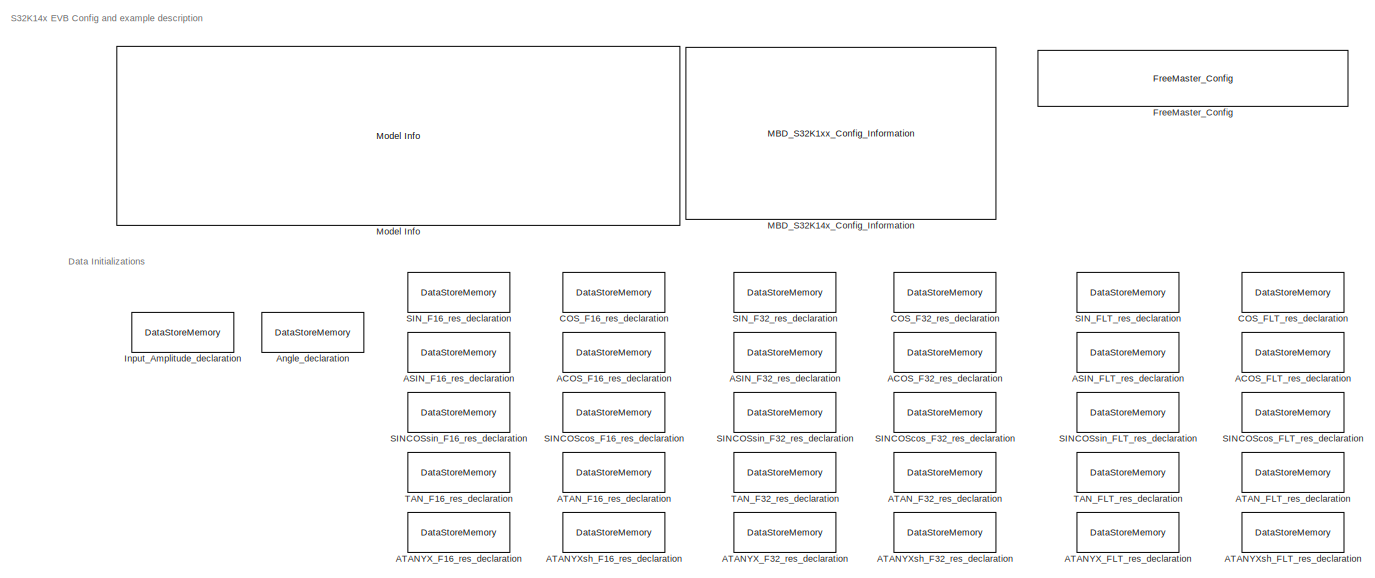
[diagram: root canvas - part 1/16, top center region]
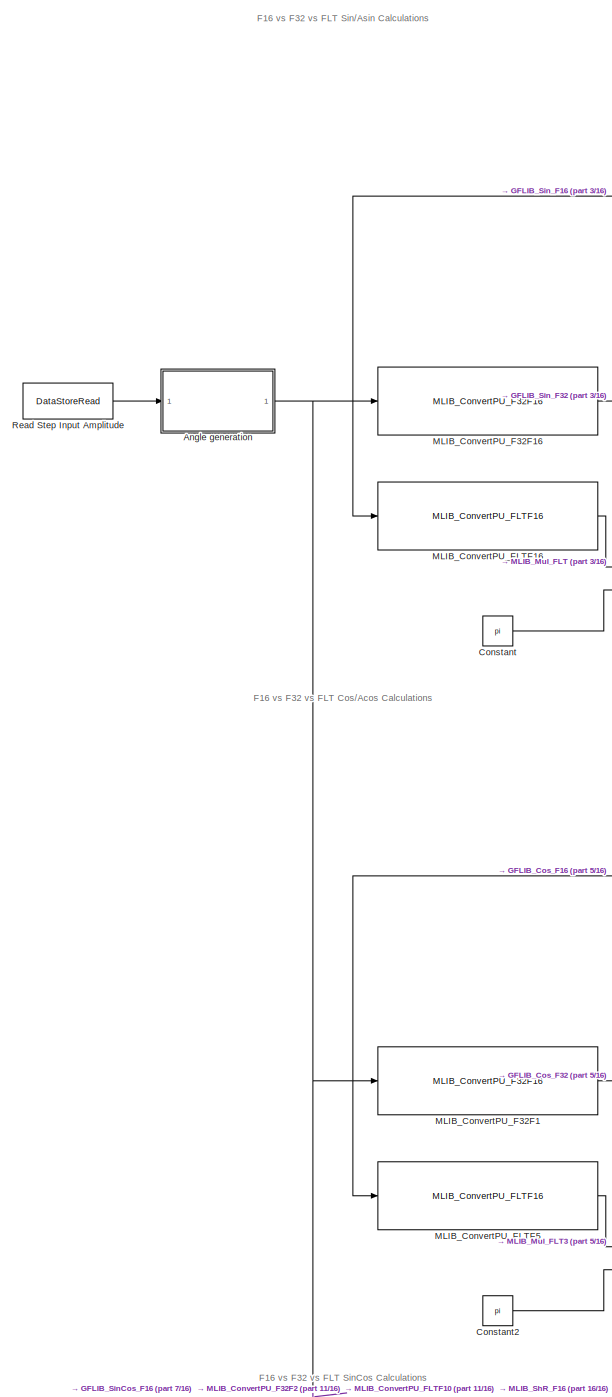
[diagram: root canvas - part 2/16, middle left region]
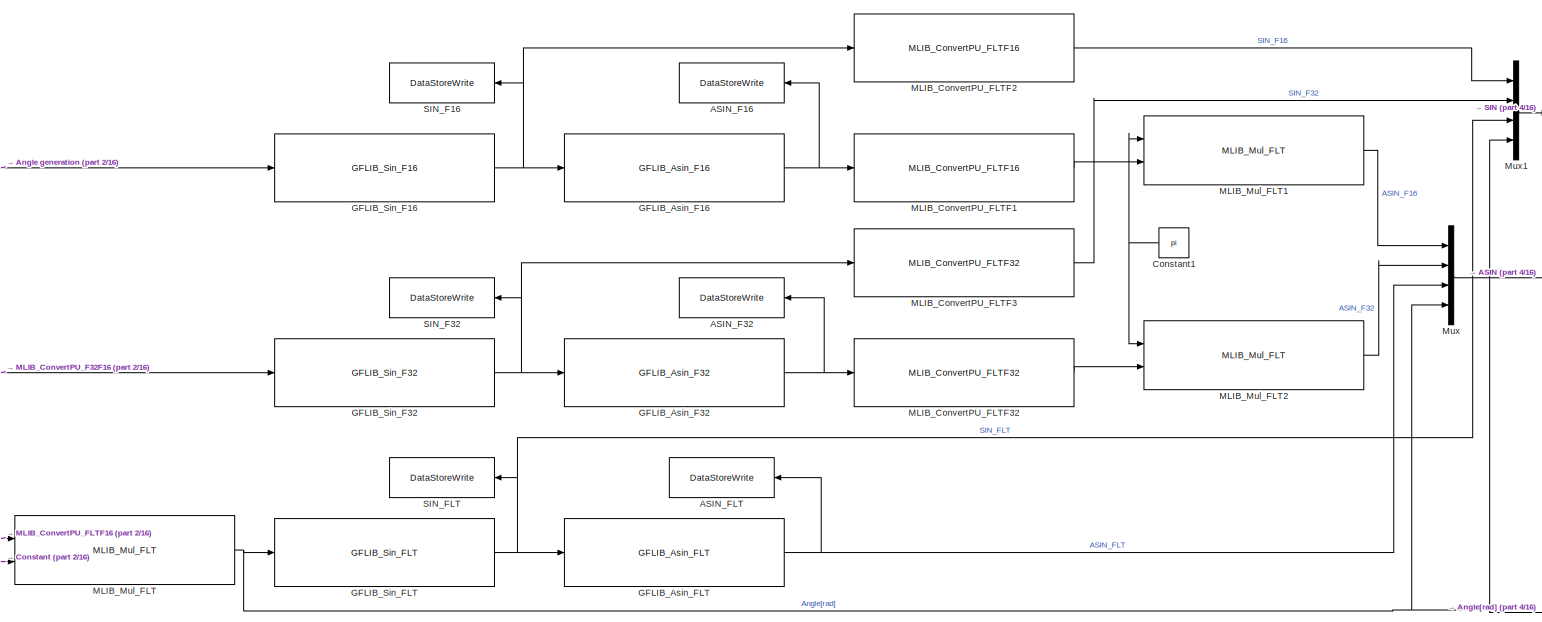
[diagram: root canvas - part 3/16, top left region]
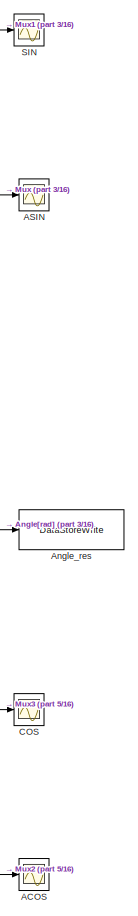
[diagram: root canvas - part 4/16, central region]
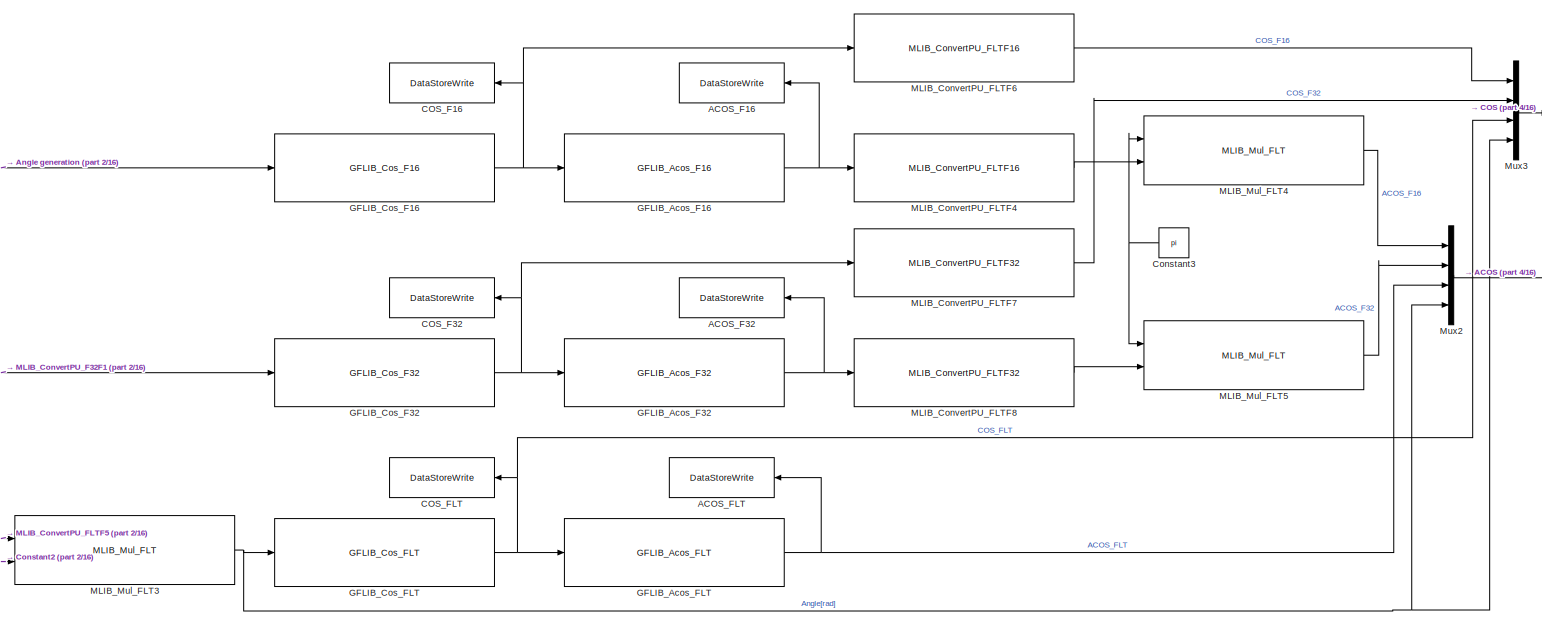
[diagram: root canvas - part 5/16, middle left region]
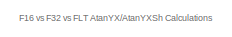
[diagram: root canvas - part 6/16, central region]
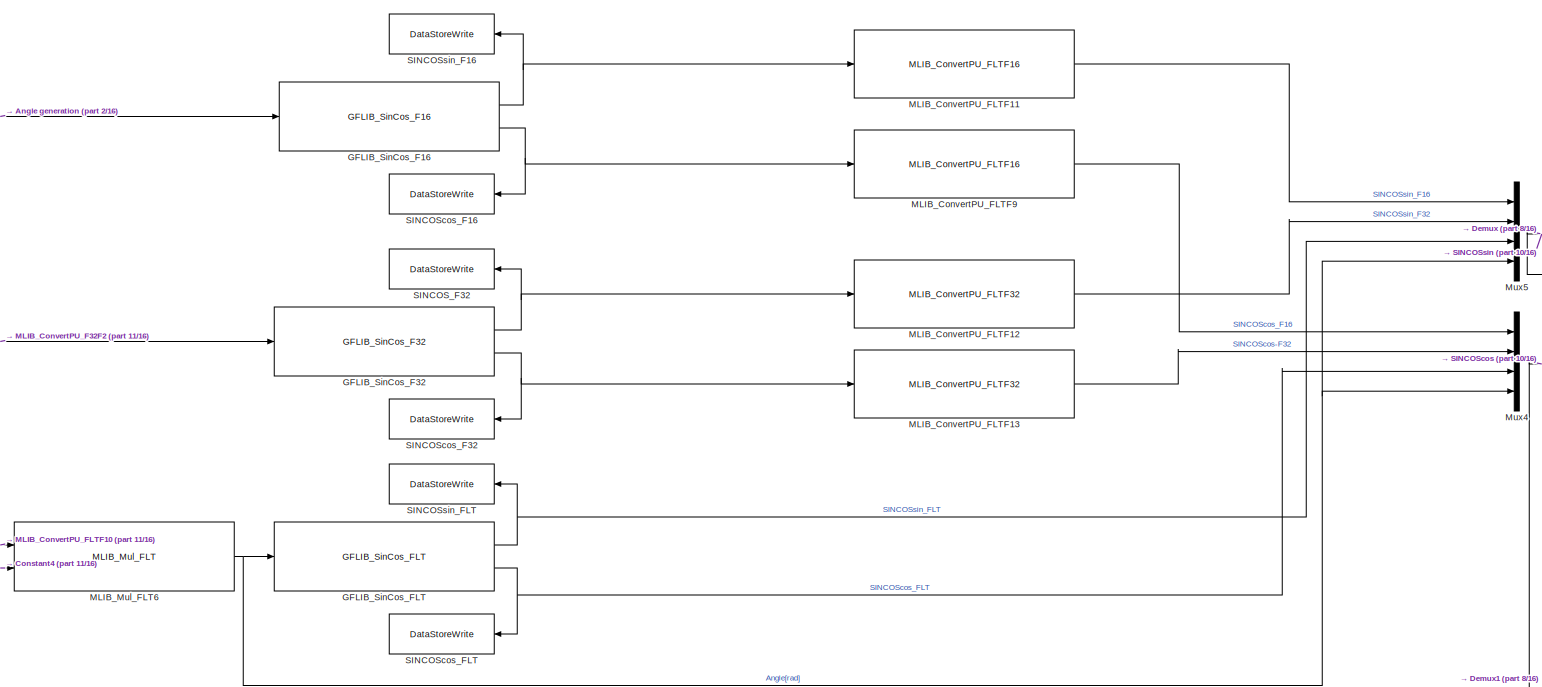
[diagram: root canvas - part 7/16, bottom left region]
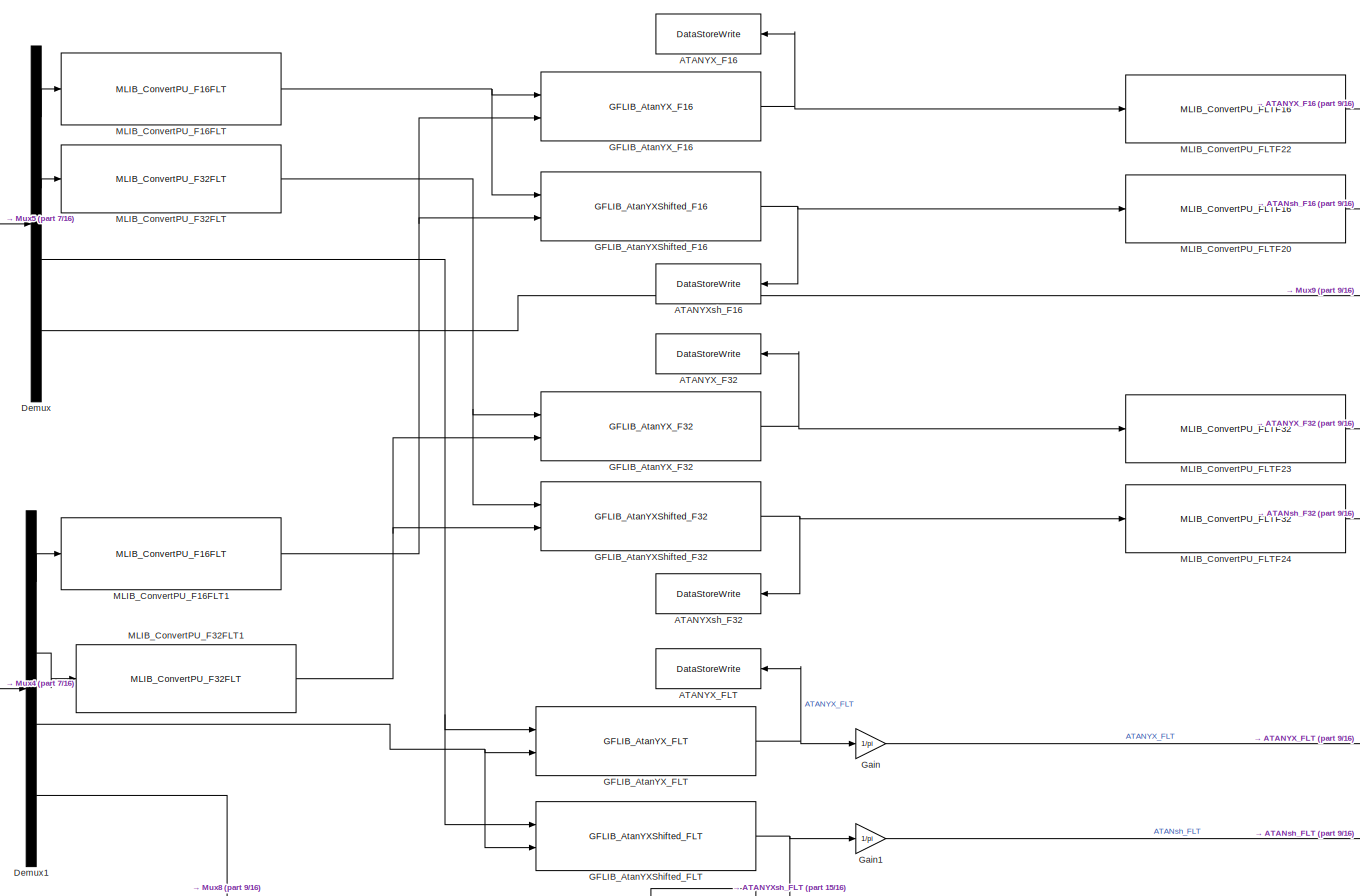
[diagram: root canvas - part 8/16, bottom right region]
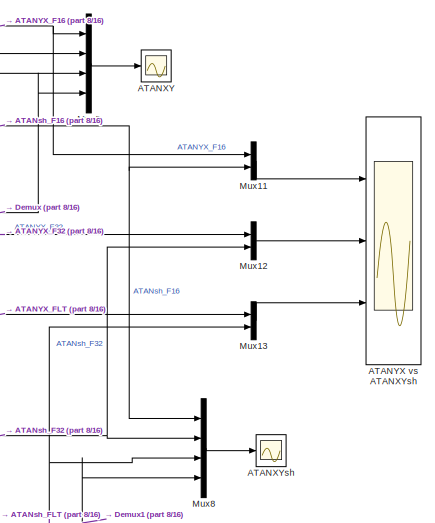
[diagram: root canvas - part 9/16, bottom right region]
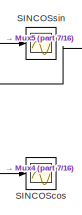
[diagram: root canvas - part 10/16, bottom center region]
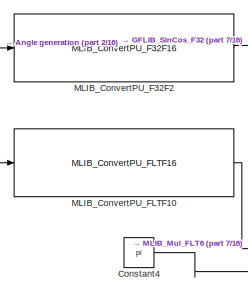
[diagram: root canvas - part 11/16, bottom left region]
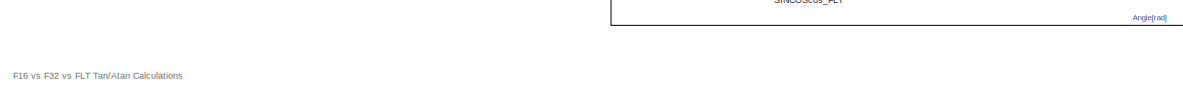
[diagram: root canvas - part 12/16, bottom left region]
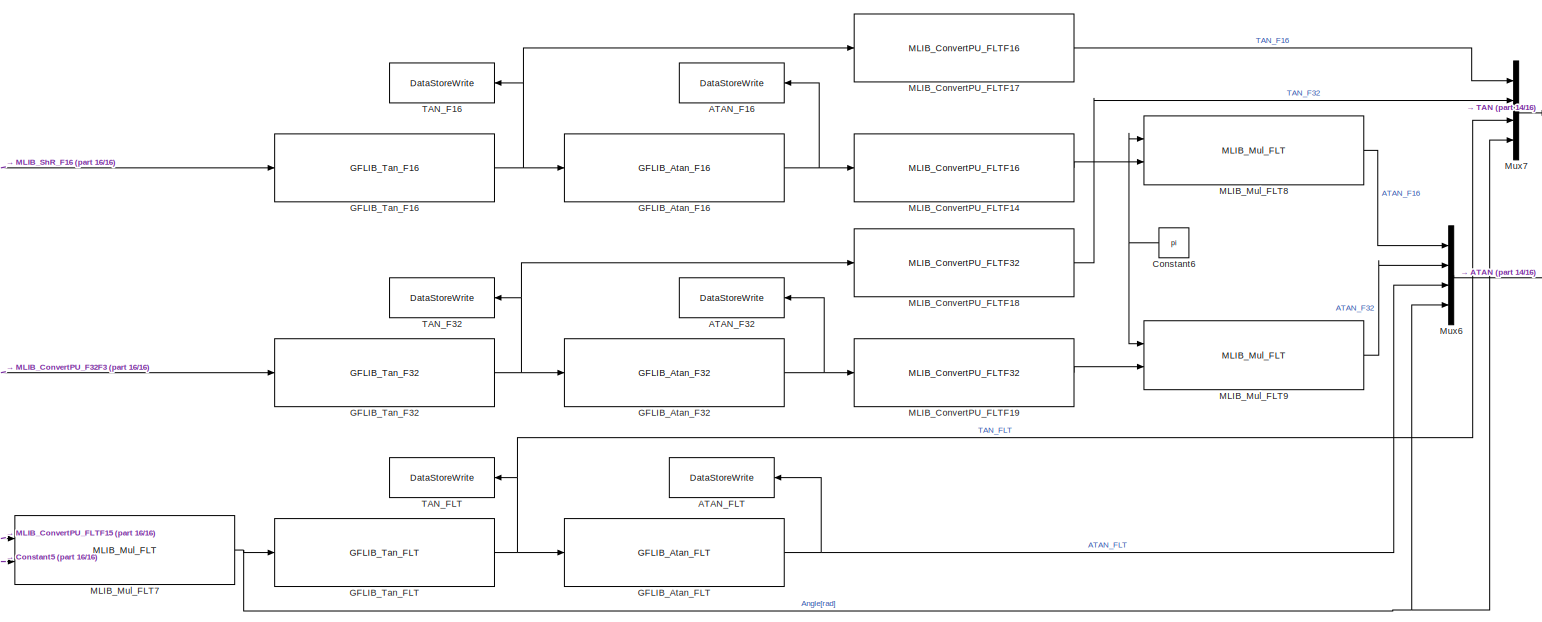
[diagram: root canvas - part 13/16, bottom left region]
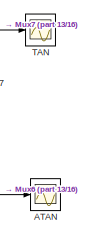
[diagram: root canvas - part 14/16, bottom center region]
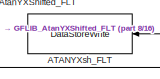
[diagram: root canvas - part 15/16, bottom right region]
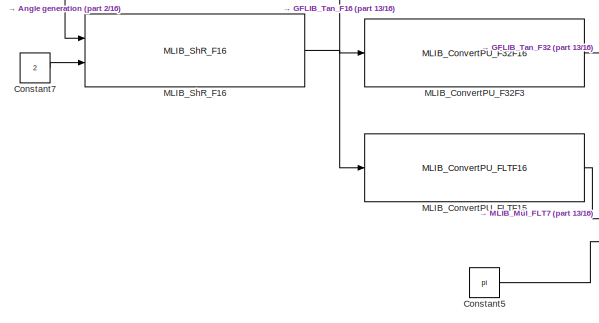
[diagram: root canvas - part 16/16, bottom left region]
MODEL ammclib_gflib_trigonometric_s32k14x
KIND model
CONFIG InitFcn = mbd_s32k_consistency_checks(bdroot(gcs));
BLOCK [Scope] ACOS
  NumInputPorts = 1
  Ports = [1]
  SID = 788
  ScopeSpecificationString = Simulink.scopes.TimeScopeBlockCfg('CurrentConfiguration', extmgr.ConfigurationSet(extmgr.Configuration('Core','General UI',true),extmgr.Configuration('Core','Source UI',true),extmgr.Configuration('Sources','WiredSimulink',true,'DataLoggingVariableName','ScopeData2'),extmgr.Configuration('Visuals','Time Domain',true,'SerializedDisplays',{struct('MinYLimReal','-3.92235','MaxYLimReal','3.92647','YLab...<+1821ch>
BLOCK [DataStoreWrite] ACOS_F16
  DataStoreName = ACOS_F16
  Ports = [1]
  SID = 789
BLOCK [DataStoreMemory] ACOS_F16_res_declaration
  DataStoreName = ACOS_F16
  OutDataTypeStr = int16
  Priority = 2
  ReadBeforeWriteMsg = warning
  SID = 824
  ShowAdditionalParam = off
  WriteAfterReadMsg = warning
  WriteAfterWriteMsg = warning
BLOCK [DataStoreWrite] ACOS_F32
  DataStoreName = ACOS_F32
  Ports = [1]
  SID = 790
BLOCK [DataStoreMemory] ACOS_F32_res_declaration
  DataStoreName = ACOS_F32
  OutDataTypeStr = int32
  Priority = 2
  ReadBeforeWriteMsg = warning
  SID = 826
  ShowAdditionalParam = off
  WriteAfterReadMsg = warning
  WriteAfterWriteMsg = warning
BLOCK [DataStoreWrite] ACOS_FLT
  DataStoreName = ACOS_FLT
  Ports = [1]
  SID = 815
BLOCK [DataStoreMemory] ACOS_FLT_res_declaration
  DataStoreName = ACOS_FLT
  OutDataTypeStr = single
  Priority = 2
  ReadBeforeWriteMsg = warning
  SID = 828
  ShowAdditionalParam = off
  WriteAfterReadMsg = warning
  WriteAfterWriteMsg = warning
BLOCK [Scope] ASIN
  NumInputPorts = 1
  Ports = [1]
  SID = 787
  ScopeSpecificationString = Simulink.scopes.TimeScopeBlockCfg('CurrentConfiguration', extmgr.ConfigurationSet(extmgr.Configuration('Core','General UI',true),extmgr.Configuration('Core','Source UI',true),extmgr.Configuration('Sources','WiredSimulink',true),extmgr.Configuration('Visuals','Time Domain',true,'SerializedDisplays',{struct('MinYLimReal','-3.92214','MaxYLimReal','3.92453','YLabelReal','','MinYLimMag','0.00000','MaxY...<+1803ch>
BLOCK [DataStoreWrite] ASIN_F16
  DataStoreName = ASIN_F16
  Ports = [1]
  SID = 784
BLOCK [DataStoreMemory] ASIN_F16_res_declaration
  DataStoreName = ASIN_F16
  OutDataTypeStr = int16
  Priority = 2
  ReadBeforeWriteMsg = warning
  SID = 778
  ShowAdditionalParam = off
  WriteAfterReadMsg = warning
  WriteAfterWriteMsg = warning
BLOCK [DataStoreWrite] ASIN_F32
  DataStoreName = ASIN_F32
  Ports = [1]
  SID = 785
BLOCK [DataStoreMemory] ASIN_F32_res_declaration
  DataStoreName = ASIN_F32
  OutDataTypeStr = int32
  Priority = 2
  ReadBeforeWriteMsg = warning
  SID = 779
  ShowAdditionalParam = off
  WriteAfterReadMsg = warning
  WriteAfterWriteMsg = warning
BLOCK [DataStoreWrite] ASIN_FLT
  DataStoreName = ASIN_FLT
  Ports = [1]
  SID = 786
BLOCK [DataStoreMemory] ASIN_FLT_res_declaration
  DataStoreName = ASIN_FLT
  OutDataTypeStr = single
  Priority = 2
  ReadBeforeWriteMsg = warning
  SID = 780
  ShowAdditionalParam = off
  WriteAfterReadMsg = warning
  WriteAfterWriteMsg = warning
BLOCK [Scope] ATAN
  NumInputPorts = 1
  Ports = [1]
  SID = 880
  ScopeSpecificationString = Simulink.scopes.TimeScopeBlockCfg('CurrentConfiguration', extmgr.ConfigurationSet(extmgr.Configuration('Core','General UI',true),extmgr.Configuration('Core','Source UI',true),extmgr.Configuration('Sources','WiredSimulink',true,'DataLoggingVariableName','ScopeData6'),extmgr.Configuration('Visuals','Time Domain',true,'SerializedDisplays',{struct('MinYLimReal','-0.98061','MaxYLimReal','0.98109','YLab...<+1809ch>
BLOCK [Scope] ATANXY
  NumInputPorts = 1
  Ports = [1]
  SID = 948
  ScopeSpecificationString = Simulink.scopes.TimeScopeBlockCfg('CurrentConfiguration', extmgr.ConfigurationSet(extmgr.Configuration('Core','General UI',true),extmgr.Configuration('Core','Source UI',true),extmgr.Configuration('Sources','WiredSimulink',true,'DataLoggingVariableName','ScopeData9'),extmgr.Configuration('Visuals','Time Domain',true,'SerializedDisplays',{struct('MinYLimReal','-3.92516','MaxYLimReal','3.92583','YLab...<+1812ch>
BLOCK [Scope] ATANXYsh
  NumInputPorts = 1
  Ports = [1]
  SID = 925
  ScopeSpecificationString = Simulink.scopes.TimeScopeBlockCfg('CurrentConfiguration', extmgr.ConfigurationSet(extmgr.Configuration('Core','General UI',true),extmgr.Configuration('Core','Source UI',true),extmgr.Configuration('Sources','WiredSimulink',true,'DataLoggingVariableName','ScopeData8'),extmgr.Configuration('Visuals','Time Domain',true,'SerializedDisplays',{struct('MinYLimReal','-3.92651','MaxYLimReal','3.92533','YLab...<+1813ch>
BLOCK [Scope] ATANYX vs ATANXYsh
  NumInputPorts = 3
  Ports = [3]
  SID = 975
  ScopeSpecificationString = Simulink.scopes.TimeScopeBlockCfg('CurrentConfiguration', extmgr.ConfigurationSet(extmgr.Configuration('Core','General UI',true),extmgr.Configuration('Core','Source UI',true),extmgr.Configuration('Sources','WiredSimulink',true,'DataLoggingVariableName','ScopeData10'),extmgr.Configuration('Visuals','Time Domain',true,'SerializedDisplays',{struct('MinYLimReal','-3.92651','MaxYLimReal','3.92533','YLa...<+3678ch>
BLOCK [DataStoreWrite] ATANYX_F16
  DataStoreName = ATANYX_F16
  Ports = [1]
  SID = 949
BLOCK [DataStoreMemory] ATANYX_F16_res_declaration
  DataStoreName = ATANYX_F16
  OutDataTypeStr = int16
  Priority = 2
  ReadBeforeWriteMsg = warning
  SID = 919
  ShowAdditionalParam = off
  WriteAfterReadMsg = warning
  WriteAfterWriteMsg = warning
BLOCK [DataStoreWrite] ATANYX_F32
  DataStoreName = ATANYX_F32
  Ports = [1]
  SID = 950
BLOCK [DataStoreMemory] ATANYX_F32_res_declaration
  DataStoreName = ATANYX_F32
  OutDataTypeStr = int32
  Priority = 2
  ReadBeforeWriteMsg = warning
  SID = 921
  ShowAdditionalParam = off
  WriteAfterReadMsg = warning
  WriteAfterWriteMsg = warning
BLOCK [DataStoreWrite] ATANYX_FLT
  DataStoreName = ATANYX_FLT
  Ports = [1]
  SID = 951
BLOCK [DataStoreMemory] ATANYX_FLT_res_declaration
  DataStoreName = ATANYX_FLT
  OutDataTypeStr = single
  Priority = 2
  ReadBeforeWriteMsg = warning
  SID = 923
  ShowAdditionalParam = off
  WriteAfterReadMsg = warning
  WriteAfterWriteMsg = warning
BLOCK [DataStoreWrite] ATANYXsh_F16
  DataStoreName = ATANYXsh_F16
  Ports = [1]
  SID = 926
BLOCK [DataStoreMemory] ATANYXsh_F16_res_declaration
  DataStoreName = ATANYXsh_F16
  OutDataTypeStr = int16
  Priority = 2
  ReadBeforeWriteMsg = warning
  SID = 920
  ShowAdditionalParam = off
  WriteAfterReadMsg = warning
  WriteAfterWriteMsg = warning
BLOCK [DataStoreWrite] ATANYXsh_F32
  DataStoreName = ATANYXsh_F32
  Ports = [1]
  SID = 957
BLOCK [DataStoreMemory] ATANYXsh_F32_res_declaration
  DataStoreName = ATANYXsh_F32
  OutDataTypeStr = int32
  Priority = 2
  ReadBeforeWriteMsg = warning
  SID = 922
  ShowAdditionalParam = off
  WriteAfterReadMsg = warning
  WriteAfterWriteMsg = warning
BLOCK [DataStoreWrite] ATANYXsh_FLT
  DataStoreName = ATANYXsh_FLT
  Ports = [1]
  SID = 960
BLOCK [DataStoreMemory] ATANYXsh_FLT_res_declaration
  DataStoreName = ATANYXsh_FLT
  OutDataTypeStr = single
  Priority = 2
  ReadBeforeWriteMsg = warning
  SID = 924
  ShowAdditionalParam = off
  WriteAfterReadMsg = warning
  WriteAfterWriteMsg = warning
BLOCK [DataStoreWrite] ATAN_F16
  DataStoreName = ATAN_F16
  Ports = [1]
  SID = 881
BLOCK [DataStoreMemory] ATAN_F16_res_declaration
  DataStoreName = ATAN_F16
  OutDataTypeStr = int16
  Priority = 2
  ReadBeforeWriteMsg = warning
  SID = 875
  ShowAdditionalParam = off
  WriteAfterReadMsg = warning
  WriteAfterWriteMsg = warning
BLOCK [DataStoreWrite] ATAN_F32
  DataStoreName = ATAN_F32
  Ports = [1]
  SID = 882
BLOCK [DataStoreMemory] ATAN_F32_res_declaration
  DataStoreName = ATAN_F32
  OutDataTypeStr = int32
  Priority = 2
  ReadBeforeWriteMsg = warning
  SID = 877
  ShowAdditionalParam = off
  WriteAfterReadMsg = warning
  WriteAfterWriteMsg = warning
BLOCK [DataStoreWrite] ATAN_FLT
  DataStoreName = ATAN_FLT
  Ports = [1]
  SID = 907
BLOCK [DataStoreMemory] ATAN_FLT_res_declaration
  DataStoreName = ATAN_FLT
  OutDataTypeStr = single
  Priority = 2
  ReadBeforeWriteMsg = warning
  SID = 879
  ShowAdditionalParam = off
  WriteAfterReadMsg = warning
  WriteAfterWriteMsg = warning
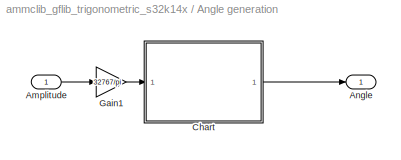
BLOCK [SubSystem] Angle generation
  Ports = [1, 1]
  RequestExecContextInheritance = off
  SID = 774
  Variant = off
BLOCK [Inport] Angle generation/Amplitude 
  IconDisplay = Port number
  SID = 775
BLOCK [Outport] Angle generation/Angle
  IconDisplay = Port number
  SID = 776
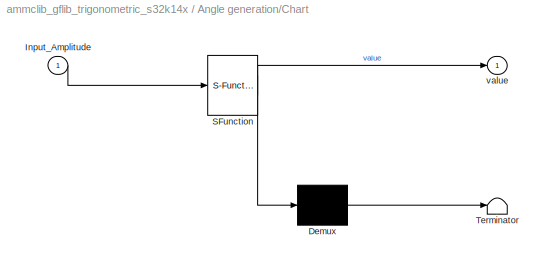
BLOCK [SubSystem] Angle generation/Chart
  ErrorFcn = Stateflow.Translate.translate
  PermitHierarchicalResolution = ExplicitOnly
  Ports = [1, 1]
  RequestExecContextInheritance = off
  SFBlockType = Chart
  SID = 708
  TreatAsAtomicUnit = on
  Variant = off
BLOCK [Demux] Angle generation/Chart/ Demux 
  Outputs = 1
  Ports = [1, 1]
  SID = 708::32
BLOCK [S-Function] Angle generation/Chart/ SFunction 
  EnableBusSupport = off
  FunctionName = sf_sfun
  PortCounts = [1 2]
  Ports = [1, 2]
  SFcnIsStateOwnerBlock = off
  SFunctionDeploymentMode = off
  SID = 708::31
  Tag = Stateflow S-Function ammclib_gflib_trigonometric_s32k14x 5
BLOCK [Terminator] Angle generation/Chart/ Terminator 
  SID = 708::33
BLOCK [Inport] Angle generation/Chart/Input_Amplitude
  IconDisplay = Port number
  SID = 708::30
BLOCK [Outport] Angle generation/Chart/value
  IconDisplay = Port number
  SID = 708::5
BLOCK [Gain] Angle generation/Gain1
  Gain = 32767/pi
  OutDataTypeStr = Inherit: Inherit via back propagation
  ParamDataTypeStr = Inherit: Inherit via internal rule
  SID = 747
  SaturateOnIntegerOverflow = off
BLOCK [DataStoreMemory] Angle_declaration
  DataStoreName = Angle
  OutDataTypeStr = single
  OutMax = 1
  OutMin = -1
  Priority = 1
  SID = 706
  ShowAdditionalParam = off
  WriteAfterReadMsg = warning
  WriteAfterWriteMsg = warning
BLOCK [DataStoreWrite] Angle_res
  DataStoreName = Angle
  Ports = [1]
  SID = 707
BLOCK [Scope] COS
  NumInputPorts = 1
  Ports = [1]
  SID = 811
  ScopeSpecificationString = Simulink.scopes.TimeScopeBlockCfg('CurrentConfiguration', extmgr.ConfigurationSet(extmgr.Configuration('Core','General UI',true),extmgr.Configuration('Core','Source UI',true),extmgr.Configuration('Sources','WiredSimulink',true,'DataLoggingVariableName','ScopeData3'),extmgr.Configuration('Visuals','Time Domain',true,'SerializedDisplays',{struct('MinYLimReal','-3.92214','MaxYLimReal','3.92453','YLab...<+1787ch>
BLOCK [DataStoreWrite] COS_F16
  DataStoreName = COS_F16
  Ports = [1]
  SID = 812
BLOCK [DataStoreMemory] COS_F16_res_declaration
  DataStoreName = COS_F16
  OutDataTypeStr = int16
  Priority = 2
  ReadBeforeWriteMsg = warning
  SID = 823
  ShowAdditionalParam = off
  WriteAfterReadMsg = warning
  WriteAfterWriteMsg = warning
BLOCK [DataStoreWrite] COS_F32
  DataStoreName = COS_F32
  Ports = [1]
  SID = 813
BLOCK [DataStoreMemory] COS_F32_res_declaration
  DataStoreName = COS_F32
  OutDataTypeStr = int32
  Priority = 2
  ReadBeforeWriteMsg = warning
  SID = 825
  ShowAdditionalParam = off
  WriteAfterReadMsg = warning
  WriteAfterWriteMsg = warning
BLOCK [DataStoreWrite] COS_FLT
  DataStoreName = COS_FLT
  Ports = [1]
  SID = 814
BLOCK [DataStoreMemory] COS_FLT_res_declaration
  DataStoreName = COS_FLT
  OutDataTypeStr = single
  Priority = 2
  ReadBeforeWriteMsg = warning
  SID = 827
  ShowAdditionalParam = off
  WriteAfterReadMsg = warning
  WriteAfterWriteMsg = warning
BLOCK [Constant] Constant
  OutDataTypeStr = Inherit: Inherit via back propagation
  SID = 755
  Value = pi
BLOCK [Constant] Constant1
  OutDataTypeStr = Inherit: Inherit via back propagation
  SID = 764
  Value = pi
BLOCK [Constant] Constant2
  OutDataTypeStr = Inherit: Inherit via back propagation
  SID = 792
  Value = pi
BLOCK [Constant] Constant3
  OutDataTypeStr = Inherit: Inherit via back propagation
  SID = 793
  Value = pi
BLOCK [Constant] Constant4
  OutDataTypeStr = Inherit: Inherit via back propagation
  SID = 837
  Value = pi
BLOCK [Constant] Constant5
  OutDataTypeStr = Inherit: Inherit via back propagation
  SID = 884
  Value = pi
BLOCK [Constant] Constant6
  OutDataTypeStr = Inherit: Inherit via back propagation
  SID = 885
  Value = pi
BLOCK [Constant] Constant7
  OutDataTypeStr = Inherit: Inherit via back propagation
  SID = 918
  Value = 2
BLOCK [Demux] Demux
  DisplayOption = bar
  Ports = [1, 4]
  SID = 961
BLOCK [Demux] Demux1
  DisplayOption = bar
  Ports = [1, 4]
  SID = 962
BLOCK [Reference] FreeMaster_Config  REF=mbd_s32k1xx_ec_toolbox/Utility Blocks/FreeMaster_Config
  Ports = []
  SID = 564
  SourceBlock = mbd_s32k1xx_ec_toolbox/Utility Blocks/FreeMaster_Config
  SourceType = fm_s32k_config
  baudrate = 115200
  comm_buffer_size = 255
  comm_buffer_size_auto = on
  comm_rqueue_size = 32
  comm_rqueue_size_default = on
  interface = LPUART1
  isr_prio = 15
  max_rec_vars = 8
  max_scope_vars = 8
  mode = Short Interrupt
  rec_buff_size = 1024
  rec_timebase = 0
  rec_timebase_unit = milliseconds
  rxd = PTC6: [LPUART1_RX | Receive]
  show_adv_opts = off
  txd = PTC7: [LPUART1_TX | Transmit]
  use_recorder = on
  use_scope = on
BLOCK [Reference] GFLIB_Acos_F16  REF=ammclib_bam_s32k14x/GFLIB/bam_f16/GFLIB_Acos_F16  (lib defined in mdl_f341c9dd7fd9)
  Ports = [1, 1]
  SID = 818
  SourceBlock = ammclib_bam_s32k14x/GFLIB/bam_f16/GFLIB_Acos_F16
  SourceType = GFLIB_Acos_F16
BLOCK [Reference] GFLIB_Acos_F32  REF=ammclib_bam_s32k14x/GFLIB/bam_f32/GFLIB_Acos_F32  (lib defined in mdl_f341c9dd7fd9)
  Ports = [1, 1]
  SID = 820
  SourceBlock = ammclib_bam_s32k14x/GFLIB/bam_f32/GFLIB_Acos_F32
  SourceType = GFLIB_Acos_F32
BLOCK [Reference] GFLIB_Acos_FLT  REF=ammclib_bam_s32k14x/GFLIB/bam_flt/GFLIB_Acos_FLT  (lib defined in mdl_f341c9dd7fd9)
  Ports = [1, 1]
  SID = 822
  SourceBlock = ammclib_bam_s32k14x/GFLIB/bam_flt/GFLIB_Acos_FLT
  SourceType = GFLIB_Acos_FLT
BLOCK [Reference] GFLIB_Asin_F16  REF=ammclib_bam_s32k14x/GFLIB/bam_f16/GFLIB_Asin_F16  (lib defined in mdl_f341c9dd7fd9)
  Ports = [1, 1]
  SID = 712
  SourceBlock = ammclib_bam_s32k14x/GFLIB/bam_f16/GFLIB_Asin_F16
  SourceType = GFLIB_Asin_F16
BLOCK [Reference] GFLIB_Asin_F32  REF=ammclib_bam_s32k14x/GFLIB/bam_f32/GFLIB_Asin_F32  (lib defined in mdl_f341c9dd7fd9)
  Ports = [1, 1]
  SID = 732
  SourceBlock = ammclib_bam_s32k14x/GFLIB/bam_f32/GFLIB_Asin_F32
  SourceType = GFLIB_Asin_F32
BLOCK [Reference] GFLIB_Asin_FLT  REF=ammclib_bam_s32k14x/GFLIB/bam_flt/GFLIB_Asin_FLT  (lib defined in mdl_f341c9dd7fd9)
  Ports = [1, 1]
  SID = 738
  SourceBlock = ammclib_bam_s32k14x/GFLIB/bam_flt/GFLIB_Asin_FLT
  SourceType = GFLIB_Asin_FLT
BLOCK [Reference] GFLIB_AtanYXShifted_F16  REF=ammclib_bam_s32k14x/GFLIB/bam_f16/GFLIB_AtanYXShifted_F16  (lib defined in mdl_f341c9dd7fd9)
  Kx = 28803
  Ky = 19918
  Nx = 0
  Ny = 0
  Ports = [2, 1]
  SID = 954
  SourceBlock = ammclib_bam_s32k14x/GFLIB/bam_f16/GFLIB_AtanYXShifted_F16
  SourceType = GFLIB_AtanYXShifted_F16
  ThetaAdj = 1820
BLOCK [Reference] GFLIB_AtanYXShifted_F32  REF=ammclib_bam_s32k14x/GFLIB/bam_f32/GFLIB_AtanYXShifted_F32  (lib defined in mdl_f341c9dd7fd9)
  Kx = 1.887749824036660e+09
  Ky = 1.305434611595101e+09
  Nx = 0
  Ny = 0
  Ports = [2, 1]
  SID = 956
  SourceBlock = ammclib_bam_s32k14x/GFLIB/bam_f32/GFLIB_AtanYXShifted_F32
  SourceType = GFLIB_AtanYXShifted_F32
  ThetaAdj = 1.193046470436251e+08
BLOCK [Reference] GFLIB_AtanYXShifted_FLT  REF=ammclib_bam_s32k14x/GFLIB/bam_flt/GFLIB_AtanYXShifted_FLT  (lib defined in mdl_f341c9dd7fd9)
  Kx = 0.8790788409
  Ky = 0.6079089139
  Ports = [2, 1]
  SID = 959
  SourceBlock = ammclib_bam_s32k14x/GFLIB/bam_flt/GFLIB_AtanYXShifted_FLT
  SourceType = GFLIB_AtanYXShifted_FLT
  ThetaAdj = 0.1745329252
BLOCK [Reference] GFLIB_AtanYX_F16  REF=ammclib_bam_s32k14x/GFLIB/bam_f16/GFLIB_AtanYX_F16  (lib defined in mdl_f341c9dd7fd9)
  Ports = [2, 1]
  SID = 953
  SourceBlock = ammclib_bam_s32k14x/GFLIB/bam_f16/GFLIB_AtanYX_F16
  SourceType = GFLIB_AtanYX_F16
BLOCK [Reference] GFLIB_AtanYX_F32  REF=ammclib_bam_s32k14x/GFLIB/bam_f32/GFLIB_AtanYX_F32  (lib defined in mdl_f341c9dd7fd9)
  Ports = [2, 1]
  SID = 955
  SourceBlock = ammclib_bam_s32k14x/GFLIB/bam_f32/GFLIB_AtanYX_F32
  SourceType = GFLIB_AtanYX_F32
BLOCK [Reference] GFLIB_AtanYX_FLT  REF=ammclib_bam_s32k14x/GFLIB/bam_flt/GFLIB_AtanYX_FLT  (lib defined in mdl_f341c9dd7fd9)
  Ports = [2, 1]
  SID = 958
  SourceBlock = ammclib_bam_s32k14x/GFLIB/bam_flt/GFLIB_AtanYX_FLT
  SourceType = GFLIB_AtanYX_FLT
BLOCK [Reference] GFLIB_Atan_F16  REF=ammclib_bam_s32k14x/GFLIB/bam_f16/GFLIB_Atan_F16  (lib defined in mdl_f341c9dd7fd9)
  Ports = [1, 1]
  SID = 910
  SourceBlock = ammclib_bam_s32k14x/GFLIB/bam_f16/GFLIB_Atan_F16
  SourceType = GFLIB_Atan_F16
BLOCK [Reference] GFLIB_Atan_F32  REF=ammclib_bam_s32k14x/GFLIB/bam_f32/GFLIB_Atan_F32  (lib defined in mdl_f341c9dd7fd9)
  Ports = [1, 1]
  SID = 912
  SourceBlock = ammclib_bam_s32k14x/GFLIB/bam_f32/GFLIB_Atan_F32
  SourceType = GFLIB_Atan_F32
BLOCK [Reference] GFLIB_Atan_FLT  REF=ammclib_bam_s32k14x/GFLIB/bam_flt/GFLIB_Atan_FLT  (lib defined in mdl_f341c9dd7fd9)
  Ports = [1, 1]
  SID = 914
  SourceBlock = ammclib_bam_s32k14x/GFLIB/bam_flt/GFLIB_Atan_FLT
  SourceType = GFLIB_Atan_FLT
BLOCK [Reference] GFLIB_Cos_F16  REF=ammclib_bam_s32k14x/GFLIB/bam_f16/GFLIB_Cos_F16  (lib defined in mdl_f341c9dd7fd9)
  Ports = [1, 1]
  SID = 817
  SourceBlock = ammclib_bam_s32k14x/GFLIB/bam_f16/GFLIB_Cos_F16
  SourceType = GFLIB_Cos_F16
BLOCK [Reference] GFLIB_Cos_F32  REF=ammclib_bam_s32k14x/GFLIB/bam_f32/GFLIB_Cos_F32  (lib defined in mdl_f341c9dd7fd9)
  Ports = [1, 1]
  SID = 819
  SourceBlock = ammclib_bam_s32k14x/GFLIB/bam_f32/GFLIB_Cos_F32
  SourceType = GFLIB_Cos_F32
BLOCK [Reference] GFLIB_Cos_FLT  REF=ammclib_bam_s32k14x/GFLIB/bam_flt/GFLIB_Cos_FLT  (lib defined in mdl_f341c9dd7fd9)
  Ports = [1, 1]
  SID = 821
  SourceBlock = ammclib_bam_s32k14x/GFLIB/bam_flt/GFLIB_Cos_FLT
  SourceType = GFLIB_Cos_FLT
BLOCK [Reference] GFLIB_SinCos_F16  REF=ammclib_bam_s32k14x/GFLIB/bam_f16/GFLIB_SinCos_F16  (lib defined in mdl_f341c9dd7fd9)
  Ports = [1, 2]
  SID = 863
  SourceBlock = ammclib_bam_s32k14x/GFLIB/bam_f16/GFLIB_SinCos_F16
  SourceType = GFLIB_SinCos_F16
BLOCK [Reference] GFLIB_SinCos_F32  REF=ammclib_bam_s32k14x/GFLIB/bam_f32/GFLIB_SinCos_F32  (lib defined in mdl_f341c9dd7fd9)
  Ports = [1, 2]
  SID = 862
  SourceBlock = ammclib_bam_s32k14x/GFLIB/bam_f32/GFLIB_SinCos_F32
  SourceType = GFLIB_SinCos_F32
BLOCK [Reference] GFLIB_SinCos_FLT  REF=ammclib_bam_s32k14x/GFLIB/bam_flt/GFLIB_SinCos_FLT  (lib defined in mdl_f341c9dd7fd9)
  Ports = [1, 2]
  SID = 861
  SourceBlock = ammclib_bam_s32k14x/GFLIB/bam_flt/GFLIB_SinCos_FLT
  SourceType = GFLIB_SinCos_FLT
BLOCK [Reference] GFLIB_Sin_F16  REF=ammclib_bam_s32k14x/GFLIB/bam_f16/GFLIB_Sin_F16  (lib defined in mdl_f341c9dd7fd9)
  Ports = [1, 1]
  SID = 711
  SourceBlock = ammclib_bam_s32k14x/GFLIB/bam_f16/GFLIB_Sin_F16
  SourceType = GFLIB_Sin_F16
BLOCK [Reference] GFLIB_Sin_F32  REF=ammclib_bam_s32k14x/GFLIB/bam_f32/GFLIB_Sin_F32  (lib defined in mdl_f341c9dd7fd9)
  Ports = [1, 1]
  SID = 731
  SourceBlock = ammclib_bam_s32k14x/GFLIB/bam_f32/GFLIB_Sin_F32
  SourceType = GFLIB_Sin_F32
BLOCK [Reference] GFLIB_Sin_FLT  REF=ammclib_bam_s32k14x/GFLIB/bam_flt/GFLIB_Sin_FLT  (lib defined in mdl_f341c9dd7fd9)
  Ports = [1, 1]
  SID = 737
  SourceBlock = ammclib_bam_s32k14x/GFLIB/bam_flt/GFLIB_Sin_FLT
  SourceType = GFLIB_Sin_FLT
BLOCK [Reference] GFLIB_Tan_F16  REF=ammclib_bam_s32k14x/GFLIB/bam_f16/GFLIB_Tan_F16  (lib defined in mdl_f341c9dd7fd9)
  Ports = [1, 1]
  SID = 909
  SourceBlock = ammclib_bam_s32k14x/GFLIB/bam_f16/GFLIB_Tan_F16
  SourceType = GFLIB_Tan_F16
BLOCK [Reference] GFLIB_Tan_F32  REF=ammclib_bam_s32k14x/GFLIB/bam_f32/GFLIB_Tan_F32  (lib defined in mdl_f341c9dd7fd9)
  Ports = [1, 1]
  SID = 911
  SourceBlock = ammclib_bam_s32k14x/GFLIB/bam_f32/GFLIB_Tan_F32
  SourceType = GFLIB_Tan_F32
BLOCK [Reference] GFLIB_Tan_FLT  REF=ammclib_bam_s32k14x/GFLIB/bam_flt/GFLIB_Tan_FLT  (lib defined in mdl_f341c9dd7fd9)
  Ports = [1, 1]
  SID = 913
  SourceBlock = ammclib_bam_s32k14x/GFLIB/bam_flt/GFLIB_Tan_FLT
  SourceType = GFLIB_Tan_FLT
BLOCK [Gain] Gain
  Gain = 1/pi
  OutDataTypeStr = Inherit: Inherit via internal rule
  ParamDataTypeStr = Inherit: Inherit via internal rule
  SID = 973
  SaturateOnIntegerOverflow = off
BLOCK [Gain] Gain1
  Gain = 1/pi
  OutDataTypeStr = Inherit: Inherit via internal rule
  ParamDataTypeStr = Inherit: Inherit via internal rule
  SID = 974
  SaturateOnIntegerOverflow = off
BLOCK [DataStoreMemory] Input_Amplitude_declaration
  DataStoreName = Input_Amplitude
  InitialValue = 3.14
  OutDataTypeStr = single
  OutMax = pi
  OutMin = -pi
  Priority = 1
  SID = 582
  ShowAdditionalParam = off
  WriteAfterReadMsg = warning
  WriteAfterWriteMsg = warning
BLOCK [Reference] MBD_S32K14x_Config_Information  REF=mbd_s32k1xx_ec_toolbox/MBD_S32K1xx_Config_Information
  ADC_PcrCheckEnDis = on
  AMMCLIB_PcrCheckEnDis = on
  CMP_PcrCheckEnDis = on
  CSEc_PcrCheckEnDis = on
  ConfigParams_PcrCheckEnDis = on
  FM_PcrCheckEnDis = on
  FTM_Dual_Edge_Inputs_PcrCheckEnDis = on
  FTM_Hall_Sensor_Inputs_PcrCheckEnDis = on
  FTM_Input_Edge_Inputs_PcrCheckEnDis = on
  FTM_PWM_PcrCheckEnDis = on
  FTM_Quadrature_Inputs_PcrCheckEnDis = on
  FlexCAN_PcrCheckEnDis = on
  FlexIO_PcrCheckEnDis = on
  GPIO_InputPcrCheckEnDis = on
  GPIO_OutputPcrCheckEnDis = on
  LIN_PcrCheckEnDis = on
  LPI2C_PcrCheckEnDis = on
  LPSPI_PcrCheckEnDis = on
  LPTMR_PcrCheckEnDis = on
  LPUART_PcrCheckEnDis = on
  ModelRef_PcrCheckEnDis = on
  PDB0_PcrCheckEnDis = on
  PIT_PcrCheckEnDis = on
  Ports = []
  Priority = 0
  Profile_PcrCheckEnDis = on
  RTC_PcrCheckEnDis = on
  SBC_PcrCheckEnDis = on
  SID = 1
  SourceBlock = mbd_s32k1xx_ec_toolbox/MBD_S32K1xx_Config_Information
  SourceType = MBDTBX_EC_S32K
  WDOG_PcrCheckEnDis = on
  config_params = []
  disp_str = Target : S32K142-16KB_SRAM\nPackage : 100-pin\nSystem clock : 80 MHz\nXTAL clock : External 8 MHz\nCompiler : GCC\nTarget Type : FLASH\nDownload Code after build : (OpenSDA: E)\nStep Tick Interrupt Priority : 15
  ds_import_enable = on
  eDMA_PcrCheckEnDis = on
  gcc_target_assemble_opts = -mcpu=cortex-m4 -mthumb -mfloat-abi=hard -mfpu=fpv4-sp-d16 -g
  gcc_target_compile_opts = -mcpu=cortex-m4 -mthumb -mfloat-abi=hard -mfpu=fpv4-sp-d16 -O1 -g -gstrict-dwarf
  gcc_target_default_lcf = on
  gcc_target_link_opts = -mcpu=cortex-m4 -mthumb -mfloat-abi=hard -mfpu=fpv4-sp-d16
  gcc_target_user_lcf = S32K144_64_flash.ld
  ghs_target_assemble_opts = -cpu=cortexm4f -fpu=vfpv4_d16
  ghs_target_compile_opts = -cpu=cortexm4f -thumb -DARM_MATH_CM4 -fpu=vfpv4_d16 -fsingle -Ogeneral -Wundef -Wimplicit-int -Wshadow -Wtrigraphs --no_commons --gnu_asm -gnu99 -gdwarf-2 -G
  ghs_target_default_lcf = off
  ghs_target_link_opts = -cpu=cortexm4f -thumb -fpu=vfpv4_d16
  ghs_target_user_lcf = S32K144_64_flash.ld
  iar_target_assemble_opts = --cpu Cortex-M4F --thumb --fpu VFPv4_sp
  iar_target_compile_opts = --cpu=Cortex-M4F --thumb --fpu=VFPv4_sp -Ol -e --debug --dlib_config normal
  iar_target_default_lcf = off
  iar_target_link_opts = --no_exceptions --vfe --inline
  iar_target_user_lcf = S32K144_64_flash.icf
  mbdt_ver = 0
  mcu_steptick_prio = 15
  mcu_steptick_timer = LPIT Channel 0
  mcu_system_clock_freq = 80
  mcu_target_name = S32K144
  mcu_target_package = 100-LQFP
  mcu_target_sram_size = 64KB
  mcu_xtal_freq = External 8
  pil_download_enable = off
  pil_download_rate = 57600
  pil_opensda_drive = Custom
  pil_opensda_drive_custom = D
  pil_uart_instance = 1
  pil_uart_rx = PTC6: [LPUART1_RX | Receive]
  pil_uart_tx = PTC7: [LPUART1_TX | Transmit]
  rbl_com_port = Custom
  rbl_com_port_custom = COM1
  rbl_download_enable = on
  rbl_download_interface = OpenSDA
  rbl_restart_request = off
  rbl_start_delay = 5000000
  target_compiler = GCC
  target_memory = FLASH
BLOCK [Reference] MLIB_ConvertPU_F16FLT  REF=ammclib_bam_s32k14x/MLIB/bam_f16/MLIB_ConvertPU_F16FLT  (lib defined in mdl_f341c9dd7fd9)
  Ports = [1, 1]
  SID = 963
  SourceBlock = ammclib_bam_s32k14x/MLIB/bam_f16/MLIB_ConvertPU_F16FLT
  SourceType = MLIB_ConvertPU_F16
BLOCK [Reference] MLIB_ConvertPU_F16FLT1  REF=ammclib_bam_s32k14x/MLIB/bam_f16/MLIB_ConvertPU_F16FLT  (lib defined in mdl_f341c9dd7fd9)
  Ports = [1, 1]
  SID = 964
  SourceBlock = ammclib_bam_s32k14x/MLIB/bam_f16/MLIB_ConvertPU_F16FLT
  SourceType = MLIB_ConvertPU_F16
BLOCK [Reference] MLIB_ConvertPU_F32F1  REF=ammclib_bam_s32k14x/MLIB/bam_f32/MLIB_ConvertPU_F32F16  (lib defined in mdl_f341c9dd7fd9)
  Ports = [1, 1]
  SID = 800
  SourceBlock = ammclib_bam_s32k14x/MLIB/bam_f32/MLIB_ConvertPU_F32F16
  SourceType = MLIB_ConvertPU_F32
BLOCK [Reference] MLIB_ConvertPU_F32F16  REF=ammclib_bam_s32k14x/MLIB/bam_f32/MLIB_ConvertPU_F32F16  (lib defined in mdl_f341c9dd7fd9)
  Ports = [1, 1]
  SID = 733
  SourceBlock = ammclib_bam_s32k14x/MLIB/bam_f32/MLIB_ConvertPU_F32F16
  SourceType = MLIB_ConvertPU_F32
BLOCK [Reference] MLIB_ConvertPU_F32F2  REF=ammclib_bam_s32k14x/MLIB/bam_f32/MLIB_ConvertPU_F32F16  (lib defined in mdl_f341c9dd7fd9)
  Ports = [1, 1]
  SID = 845
  SourceBlock = ammclib_bam_s32k14x/MLIB/bam_f32/MLIB_ConvertPU_F32F16
  SourceType = MLIB_ConvertPU_F32
BLOCK [Reference] MLIB_ConvertPU_F32F3  REF=ammclib_bam_s32k14x/MLIB/bam_f32/MLIB_ConvertPU_F32F16  (lib defined in mdl_f341c9dd7fd9)
  Ports = [1, 1]
  SID = 892
  SourceBlock = ammclib_bam_s32k14x/MLIB/bam_f32/MLIB_ConvertPU_F32F16
  SourceType = MLIB_ConvertPU_F32
BLOCK [Reference] MLIB_ConvertPU_F32FLT  REF=ammclib_bam_s32k14x/MLIB/bam_f32/MLIB_ConvertPU_F32FLT  (lib defined in mdl_f341c9dd7fd9)
  Ports = [1, 1]
  SID = 965
  SourceBlock = ammclib_bam_s32k14x/MLIB/bam_f32/MLIB_ConvertPU_F32FLT
  SourceType = MLIB_ConvertPU_F32
BLOCK [Reference] MLIB_ConvertPU_F32FLT1  REF=ammclib_bam_s32k14x/MLIB/bam_f32/MLIB_ConvertPU_F32FLT  (lib defined in mdl_f341c9dd7fd9)
  Ports = [1, 1]
  SID = 966
  SourceBlock = ammclib_bam_s32k14x/MLIB/bam_f32/MLIB_ConvertPU_F32FLT
  SourceType = MLIB_ConvertPU_F32
BLOCK [Reference] MLIB_ConvertPU_FLTF1  REF=ammclib_bam_s32k14x/MLIB/bam_flt/MLIB_ConvertPU_FLTF16  (lib defined in mdl_f341c9dd7fd9)
  Ports = [1, 1]
  SID = 757
  SourceBlock = ammclib_bam_s32k14x/MLIB/bam_flt/MLIB_ConvertPU_FLTF16
  SourceType = MLIB_ConvertPU_FLT
BLOCK [Reference] MLIB_ConvertPU_FLTF10  REF=ammclib_bam_s32k14x/MLIB/bam_flt/MLIB_ConvertPU_FLTF16  (lib defined in mdl_f341c9dd7fd9)
  Ports = [1, 1]
  SID = 847
  SourceBlock = ammclib_bam_s32k14x/MLIB/bam_flt/MLIB_ConvertPU_FLTF16
  SourceType = MLIB_ConvertPU_FLT
BLOCK [Reference] MLIB_ConvertPU_FLTF11  REF=ammclib_bam_s32k14x/MLIB/bam_flt/MLIB_ConvertPU_FLTF16  (lib defined in mdl_f341c9dd7fd9)
  Ports = [1, 1]
  SID = 848
  SourceBlock = ammclib_bam_s32k14x/MLIB/bam_flt/MLIB_ConvertPU_FLTF16
  SourceType = MLIB_ConvertPU_FLT
BLOCK [Reference] MLIB_ConvertPU_FLTF12  REF=ammclib_bam_s32k14x/MLIB/bam_flt/MLIB_ConvertPU_FLTF32  (lib defined in mdl_f341c9dd7fd9)
  Ports = [1, 1]
  SID = 849
  SourceBlock = ammclib_bam_s32k14x/MLIB/bam_flt/MLIB_ConvertPU_FLTF32
  SourceType = MLIB_ConvertPU_FLT
BLOCK [Reference] MLIB_ConvertPU_FLTF13  REF=ammclib_bam_s32k14x/MLIB/bam_flt/MLIB_ConvertPU_FLTF32  (lib defined in mdl_f341c9dd7fd9)
  Ports = [1, 1]
  SID = 871
  SourceBlock = ammclib_bam_s32k14x/MLIB/bam_flt/MLIB_ConvertPU_FLTF32
  SourceType = MLIB_ConvertPU_FLT
BLOCK [Reference] MLIB_ConvertPU_FLTF14  REF=ammclib_bam_s32k14x/MLIB/bam_flt/MLIB_ConvertPU_FLTF16  (lib defined in mdl_f341c9dd7fd9)
  Ports = [1, 1]
  SID = 893
  SourceBlock = ammclib_bam_s32k14x/MLIB/bam_flt/MLIB_ConvertPU_FLTF16
  SourceType = MLIB_ConvertPU_FLT
BLOCK [Reference] MLIB_ConvertPU_FLTF15  REF=ammclib_bam_s32k14x/MLIB/bam_flt/MLIB_ConvertPU_FLTF16  (lib defined in mdl_f341c9dd7fd9)
  Ports = [1, 1]
  SID = 894
  SourceBlock = ammclib_bam_s32k14x/MLIB/bam_flt/MLIB_ConvertPU_FLTF16
  SourceType = MLIB_ConvertPU_FLT
BLOCK [Reference] MLIB_ConvertPU_FLTF16  REF=ammclib_bam_s32k14x/MLIB/bam_flt/MLIB_ConvertPU_FLTF16  (lib defined in mdl_f341c9dd7fd9)
  Ports = [1, 1]
  SID = 752
  SourceBlock = ammclib_bam_s32k14x/MLIB/bam_flt/MLIB_ConvertPU_FLTF16
  SourceType = MLIB_ConvertPU_FLT
BLOCK [Reference] MLIB_ConvertPU_FLTF17  REF=ammclib_bam_s32k14x/MLIB/bam_flt/MLIB_ConvertPU_FLTF16  (lib defined in mdl_f341c9dd7fd9)
  Ports = [1, 1]
  SID = 895
  SourceBlock = ammclib_bam_s32k14x/MLIB/bam_flt/MLIB_ConvertPU_FLTF16
  SourceType = MLIB_ConvertPU_FLT
BLOCK [Reference] MLIB_ConvertPU_FLTF18  REF=ammclib_bam_s32k14x/MLIB/bam_flt/MLIB_ConvertPU_FLTF32  (lib defined in mdl_f341c9dd7fd9)
  Ports = [1, 1]
  SID = 896
  SourceBlock = ammclib_bam_s32k14x/MLIB/bam_flt/MLIB_ConvertPU_FLTF32
  SourceType = MLIB_ConvertPU_FLT
BLOCK [Reference] MLIB_ConvertPU_FLTF19  REF=ammclib_bam_s32k14x/MLIB/bam_flt/MLIB_ConvertPU_FLTF32  (lib defined in mdl_f341c9dd7fd9)
  Ports = [1, 1]
  SID = 897
  SourceBlock = ammclib_bam_s32k14x/MLIB/bam_flt/MLIB_ConvertPU_FLTF32
  SourceType = MLIB_ConvertPU_FLT
BLOCK [Reference] MLIB_ConvertPU_FLTF2  REF=ammclib_bam_s32k14x/MLIB/bam_flt/MLIB_ConvertPU_FLTF16  (lib defined in mdl_f341c9dd7fd9)
  Ports = [1, 1]
  SID = 767
  SourceBlock = ammclib_bam_s32k14x/MLIB/bam_flt/MLIB_ConvertPU_FLTF16
  SourceType = MLIB_ConvertPU_FLT
BLOCK [Reference] MLIB_ConvertPU_FLTF20  REF=ammclib_bam_s32k14x/MLIB/bam_flt/MLIB_ConvertPU_FLTF16  (lib defined in mdl_f341c9dd7fd9)
  Ports = [1, 1]
  SID = 938
  SourceBlock = ammclib_bam_s32k14x/MLIB/bam_flt/MLIB_ConvertPU_FLTF16
  SourceType = MLIB_ConvertPU_FLT
BLOCK [Reference] MLIB_ConvertPU_FLTF22  REF=ammclib_bam_s32k14x/MLIB/bam_flt/MLIB_ConvertPU_FLTF16  (lib defined in mdl_f341c9dd7fd9)
  Ports = [1, 1]
  SID = 940
  SourceBlock = ammclib_bam_s32k14x/MLIB/bam_flt/MLIB_ConvertPU_FLTF16
  SourceType = MLIB_ConvertPU_FLT
BLOCK [Reference] MLIB_ConvertPU_FLTF23  REF=ammclib_bam_s32k14x/MLIB/bam_flt/MLIB_ConvertPU_FLTF32  (lib defined in mdl_f341c9dd7fd9)
  Ports = [1, 1]
  SID = 941
  SourceBlock = ammclib_bam_s32k14x/MLIB/bam_flt/MLIB_ConvertPU_FLTF32
  SourceType = MLIB_ConvertPU_FLT
BLOCK [Reference] MLIB_ConvertPU_FLTF24  REF=ammclib_bam_s32k14x/MLIB/bam_flt/MLIB_ConvertPU_FLTF32  (lib defined in mdl_f341c9dd7fd9)
  Ports = [1, 1]
  SID = 942
  SourceBlock = ammclib_bam_s32k14x/MLIB/bam_flt/MLIB_ConvertPU_FLTF32
  SourceType = MLIB_ConvertPU_FLT
BLOCK [Reference] MLIB_ConvertPU_FLTF3  REF=ammclib_bam_s32k14x/MLIB/bam_flt/MLIB_ConvertPU_FLTF32  (lib defined in mdl_f341c9dd7fd9)
  Ports = [1, 1]
  SID = 770
  SourceBlock = ammclib_bam_s32k14x/MLIB/bam_flt/MLIB_ConvertPU_FLTF32
  SourceType = MLIB_ConvertPU_FLT
BLOCK [Reference] MLIB_ConvertPU_FLTF32  REF=ammclib_bam_s32k14x/MLIB/bam_flt/MLIB_ConvertPU_FLTF32  (lib defined in mdl_f341c9dd7fd9)
  Ports = [1, 1]
  SID = 759
  SourceBlock = ammclib_bam_s32k14x/MLIB/bam_flt/MLIB_ConvertPU_FLTF32
  SourceType = MLIB_ConvertPU_FLT
BLOCK [Reference] MLIB_ConvertPU_FLTF4  REF=ammclib_bam_s32k14x/MLIB/bam_flt/MLIB_ConvertPU_FLTF16  (lib defined in mdl_f341c9dd7fd9)
  Ports = [1, 1]
  SID = 801
  SourceBlock = ammclib_bam_s32k14x/MLIB/bam_flt/MLIB_ConvertPU_FLTF16
  SourceType = MLIB_ConvertPU_FLT
BLOCK [Reference] MLIB_ConvertPU_FLTF5  REF=ammclib_bam_s32k14x/MLIB/bam_flt/MLIB_ConvertPU_FLTF16  (lib defined in mdl_f341c9dd7fd9)
  Ports = [1, 1]
  SID = 802
  SourceBlock = ammclib_bam_s32k14x/MLIB/bam_flt/MLIB_ConvertPU_FLTF16
  SourceType = MLIB_ConvertPU_FLT
BLOCK [Reference] MLIB_ConvertPU_FLTF6  REF=ammclib_bam_s32k14x/MLIB/bam_flt/MLIB_ConvertPU_FLTF16  (lib defined in mdl_f341c9dd7fd9)
  Ports = [1, 1]
  SID = 803
  SourceBlock = ammclib_bam_s32k14x/MLIB/bam_flt/MLIB_ConvertPU_FLTF16
  SourceType = MLIB_ConvertPU_FLT
BLOCK [Reference] MLIB_ConvertPU_FLTF7  REF=ammclib_bam_s32k14x/MLIB/bam_flt/MLIB_ConvertPU_FLTF32  (lib defined in mdl_f341c9dd7fd9)
  Ports = [1, 1]
  SID = 804
  SourceBlock = ammclib_bam_s32k14x/MLIB/bam_flt/MLIB_ConvertPU_FLTF32
  SourceType = MLIB_ConvertPU_FLT
BLOCK [Reference] MLIB_ConvertPU_FLTF8  REF=ammclib_bam_s32k14x/MLIB/bam_flt/MLIB_ConvertPU_FLTF32  (lib defined in mdl_f341c9dd7fd9)
  Ports = [1, 1]
  SID = 805
  SourceBlock = ammclib_bam_s32k14x/MLIB/bam_flt/MLIB_ConvertPU_FLTF32
  SourceType = MLIB_ConvertPU_FLT
BLOCK [Reference] MLIB_ConvertPU_FLTF9  REF=ammclib_bam_s32k14x/MLIB/bam_flt/MLIB_ConvertPU_FLTF16  (lib defined in mdl_f341c9dd7fd9)
  Ports = [1, 1]
  SID = 868
  SourceBlock = ammclib_bam_s32k14x/MLIB/bam_flt/MLIB_ConvertPU_FLTF16
  SourceType = MLIB_ConvertPU_FLT
BLOCK [Reference] MLIB_Mul_FLT  REF=ammclib_bam_s32k14x/MLIB/bam_flt/MLIB_Mul_FLT  (lib defined in mdl_f341c9dd7fd9)
  Ports = [2, 1]
  SID = 754
  SourceBlock = ammclib_bam_s32k14x/MLIB/bam_flt/MLIB_Mul_FLT
  SourceType = MLIB_Mul_FLT
BLOCK [Reference] MLIB_Mul_FLT1  REF=ammclib_bam_s32k14x/MLIB/bam_flt/MLIB_Mul_FLT  (lib defined in mdl_f341c9dd7fd9)
  Ports = [2, 1]
  SID = 763
  SourceBlock = ammclib_bam_s32k14x/MLIB/bam_flt/MLIB_Mul_FLT
  SourceType = MLIB_Mul_FLT
BLOCK [Reference] MLIB_Mul_FLT2  REF=ammclib_bam_s32k14x/MLIB/bam_flt/MLIB_Mul_FLT  (lib defined in mdl_f341c9dd7fd9)
  Ports = [2, 1]
  SID = 766
  SourceBlock = ammclib_bam_s32k14x/MLIB/bam_flt/MLIB_Mul_FLT
  SourceType = MLIB_Mul_FLT
BLOCK [Reference] MLIB_Mul_FLT3  REF=ammclib_bam_s32k14x/MLIB/bam_flt/MLIB_Mul_FLT  (lib defined in mdl_f341c9dd7fd9)
  Ports = [2, 1]
  SID = 806
  SourceBlock = ammclib_bam_s32k14x/MLIB/bam_flt/MLIB_Mul_FLT
  SourceType = MLIB_Mul_FLT
BLOCK [Reference] MLIB_Mul_FLT4  REF=ammclib_bam_s32k14x/MLIB/bam_flt/MLIB_Mul_FLT  (lib defined in mdl_f341c9dd7fd9)
  Ports = [2, 1]
  SID = 807
  SourceBlock = ammclib_bam_s32k14x/MLIB/bam_flt/MLIB_Mul_FLT
  SourceType = MLIB_Mul_FLT
BLOCK [Reference] MLIB_Mul_FLT5  REF=ammclib_bam_s32k14x/MLIB/bam_flt/MLIB_Mul_FLT  (lib defined in mdl_f341c9dd7fd9)
  Ports = [2, 1]
  SID = 808
  SourceBlock = ammclib_bam_s32k14x/MLIB/bam_flt/MLIB_Mul_FLT
  SourceType = MLIB_Mul_FLT
BLOCK [Reference] MLIB_Mul_FLT6  REF=ammclib_bam_s32k14x/MLIB/bam_flt/MLIB_Mul_FLT  (lib defined in mdl_f341c9dd7fd9)
  Ports = [2, 1]
  SID = 851
  SourceBlock = ammclib_bam_s32k14x/MLIB/bam_flt/MLIB_Mul_FLT
  SourceType = MLIB_Mul_FLT
BLOCK [Reference] MLIB_Mul_FLT7  REF=ammclib_bam_s32k14x/MLIB/bam_flt/MLIB_Mul_FLT  (lib defined in mdl_f341c9dd7fd9)
  Ports = [2, 1]
  SID = 898
  SourceBlock = ammclib_bam_s32k14x/MLIB/bam_flt/MLIB_Mul_FLT
  SourceType = MLIB_Mul_FLT
BLOCK [Reference] MLIB_Mul_FLT8  REF=ammclib_bam_s32k14x/MLIB/bam_flt/MLIB_Mul_FLT  (lib defined in mdl_f341c9dd7fd9)
  Ports = [2, 1]
  SID = 899
  SourceBlock = ammclib_bam_s32k14x/MLIB/bam_flt/MLIB_Mul_FLT
  SourceType = MLIB_Mul_FLT
BLOCK [Reference] MLIB_Mul_FLT9  REF=ammclib_bam_s32k14x/MLIB/bam_flt/MLIB_Mul_FLT  (lib defined in mdl_f341c9dd7fd9)
  Ports = [2, 1]
  SID = 900
  SourceBlock = ammclib_bam_s32k14x/MLIB/bam_flt/MLIB_Mul_FLT
  SourceType = MLIB_Mul_FLT
BLOCK [Reference] MLIB_ShR_F16  REF=ammclib_bam_s32k14x/MLIB/bam_f16/MLIB_ShR_F16  (lib defined in mdl_f341c9dd7fd9)
  Ports = [2, 1]
  SID = 917
  SourceBlock = ammclib_bam_s32k14x/MLIB/bam_f16/MLIB_ShR_F16
  SourceType = MLIB_ShR_F16
BLOCK [Reference] Model Info  REF=simulink/Model-Wide\nUtilities/Model Info
  DisplayStringWithTags = Model Name: %<ModelName>\n\nDescription: %<Description>
  Frame = off
  HorizontalTextAlignment = Left
  LeftAlignmentValue = 0.02
  MaskDisplayString = Model Name: ammclib_gflib_trigonometric_s32k14x\\n\\nDescription: This model tests the AMMCLIB GFLIB TRIGONOMETRIC blocks\\n\\nValidation:\\n- Run the model in Simulation and check the results\\n- Open Freemaster (ammclib_gflib_trigonometric_s32k14x.pmp) and compare the HW results against the Simulated ones
  Ports = []
  SID = 524
  SourceBlock = simulink/Model-Wide\nUtilities/Model Info
  SourceProductBaseCode = SL
  SourceProductName = Simulink
  SourceType = CMBlock
BLOCK [Mux] Mux
  DisplayOption = bar
  Ports = [4, 1]
  SID = 756
BLOCK [Mux] Mux1
  DisplayOption = bar
  Ports = [4, 1]
  SID = 772
BLOCK [Mux] Mux11
  DisplayOption = bar
  Inputs = 2
  Ports = [2, 1]
  SID = 977
BLOCK [Mux] Mux12
  DisplayOption = bar
  Inputs = 2
  Ports = [2, 1]
  SID = 978
BLOCK [Mux] Mux13
  DisplayOption = bar
  Inputs = 2
  Ports = [2, 1]
  SID = 979
BLOCK [Mux] Mux2
  DisplayOption = bar
  Ports = [4, 1]
  SID = 809
BLOCK [Mux] Mux3
  DisplayOption = bar
  Ports = [4, 1]
  SID = 810
BLOCK [Mux] Mux4
  DisplayOption = bar
  Ports = [4, 1]
  SID = 872
BLOCK [Mux] Mux5
  DisplayOption = bar
  Ports = [4, 1]
  SID = 855
BLOCK [Mux] Mux6
  DisplayOption = bar
  Ports = [4, 1]
  SID = 901
BLOCK [Mux] Mux7
  DisplayOption = bar
  Ports = [4, 1]
  SID = 902
BLOCK [Mux] Mux8
  DisplayOption = bar
  Ports = [4, 1]
  SID = 946
BLOCK [Mux] Mux9
  DisplayOption = bar
  Ports = [4, 1]
  SID = 947
BLOCK [DataStoreRead] Read Step Input Amplitude
  DataStoreName = Input_Amplitude
  Ports = [0, 1]
  SID = 652
BLOCK [Scope] SIN
  NumInputPorts = 1
  Ports = [1]
  SID = 771
  ScopeSpecificationString = Simulink.scopes.TimeScopeBlockCfg('CurrentConfiguration', extmgr.ConfigurationSet(extmgr.Configuration('Core','General UI',true),extmgr.Configuration('Core','Source UI',true),extmgr.Configuration('Sources','WiredSimulink',true,'DataLoggingVariableName','ScopeData1'),extmgr.Configuration('Visuals','Time Domain',true,'SerializedDisplays',{struct('MinYLimReal','-3.92214','MaxYLimReal','3.92453','YLab...<+1818ch>
BLOCK [DataStoreWrite] SINCOS_F32
  DataStoreName = SINCOSsin_F32
  Ports = [1]
  SID = 835
BLOCK [Scope] SINCOScos
  NumInputPorts = 1
  Ports = [1]
  SID = 873
  ScopeSpecificationString = Simulink.scopes.TimeScopeBlockCfg('CurrentConfiguration', extmgr.ConfigurationSet(extmgr.Configuration('Core','General UI',true),extmgr.Configuration('Core','Source UI',true),extmgr.Configuration('Sources','WiredSimulink',true,'DataLoggingVariableName','ScopeData4'),extmgr.Configuration('Visuals','Time Domain',true,'SerializedDisplays',{struct('MinYLimReal','-3.92214','MaxYLimReal','3.92453','YLab...<+1838ch>
BLOCK [DataStoreWrite] SINCOScos_F16
  DataStoreName = SINCOScos_F16
  Ports = [1]
  SID = 867
BLOCK [DataStoreMemory] SINCOScos_F16_res_declaration
  DataStoreName = SINCOScos_F16
  OutDataTypeStr = int16
  Priority = 2
  ReadBeforeWriteMsg = warning
  SID = 864
  ShowAdditionalParam = off
  WriteAfterReadMsg = warning
  WriteAfterWriteMsg = warning
BLOCK [DataStoreWrite] SINCOScos_F32
  DataStoreName = SINCOScos_F32
  Ports = [1]
  SID = 869
BLOCK [DataStoreMemory] SINCOScos_F32_res_declaration
  DataStoreName = SINCOScos_F32
  OutDataTypeStr = int32
  Priority = 2
  ReadBeforeWriteMsg = warning
  SID = 865
  ShowAdditionalParam = off
  WriteAfterReadMsg = warning
  WriteAfterWriteMsg = warning
BLOCK [DataStoreWrite] SINCOScos_FLT
  DataStoreName = SINCOScos_FLT
  Ports = [1]
  SID = 870
BLOCK [DataStoreMemory] SINCOScos_FLT_res_declaration
  DataStoreName = SINCOScos_FLT
  OutDataTypeStr = single
  Priority = 2
  ReadBeforeWriteMsg = warning
  SID = 866
  ShowAdditionalParam = off
  WriteAfterReadMsg = warning
  WriteAfterWriteMsg = warning
BLOCK [Scope] SINCOSsin
  NumInputPorts = 1
  Ports = [1]
  SID = 833
  ScopeSpecificationString = Simulink.scopes.TimeScopeBlockCfg('CurrentConfiguration', extmgr.ConfigurationSet(extmgr.Configuration('Core','General UI',true),extmgr.Configuration('Core','Source UI',true),extmgr.Configuration('Sources','WiredSimulink',true,'DataLoggingVariableName','ScopeData5'),extmgr.Configuration('Visuals','Time Domain',true,'SerializedDisplays',{struct('MinYLimReal','-3.92214','MaxYLimReal','3.92453','YLab...<+1805ch>
BLOCK [DataStoreWrite] SINCOSsin_F16
  DataStoreName = SINCOSsin_F16
  Ports = [1]
  SID = 834
BLOCK [DataStoreMemory] SINCOSsin_F16_res_declaration
  DataStoreName = SINCOSsin_F16
  OutDataTypeStr = int16
  Priority = 2
  ReadBeforeWriteMsg = warning
  SID = 857
  ShowAdditionalParam = off
  WriteAfterReadMsg = warning
  WriteAfterWriteMsg = warning
BLOCK [DataStoreMemory] SINCOSsin_F32_res_declaration
  DataStoreName = SINCOSsin_F32
  OutDataTypeStr = int32
  Priority = 2
  ReadBeforeWriteMsg = warning
  SID = 858
  ShowAdditionalParam = off
  WriteAfterReadMsg = warning
  WriteAfterWriteMsg = warning
BLOCK [DataStoreWrite] SINCOSsin_FLT
  DataStoreName = SINCOSsin_FLT
  Ports = [1]
  SID = 836
BLOCK [DataStoreMemory] SINCOSsin_FLT_res_declaration
  DataStoreName = SINCOSsin_FLT
  OutDataTypeStr = single
  Priority = 2
  ReadBeforeWriteMsg = warning
  SID = 859
  ShowAdditionalParam = off
  WriteAfterReadMsg = warning
  WriteAfterWriteMsg = warning
BLOCK [DataStoreWrite] SIN_F16
  DataStoreName = SIN_F16
  Ports = [1]
  SID = 781
BLOCK [DataStoreMemory] SIN_F16_res_declaration
  DataStoreName = SIN_F16
  OutDataTypeStr = int16
  Priority = 2
  ReadBeforeWriteMsg = warning
  SID = 580
  ShowAdditionalParam = off
  WriteAfterReadMsg = warning
  WriteAfterWriteMsg = warning
BLOCK [DataStoreWrite] SIN_F32
  DataStoreName = SIN_F32
  Ports = [1]
  SID = 782
BLOCK [DataStoreMemory] SIN_F32_res_declaration
  DataStoreName = SIN_F32
  OutDataTypeStr = int32
  Priority = 2
  ReadBeforeWriteMsg = warning
  SID = 610
  ShowAdditionalParam = off
  WriteAfterReadMsg = warning
  WriteAfterWriteMsg = warning
BLOCK [DataStoreWrite] SIN_FLT
  DataStoreName = SIN_FLT
  Ports = [1]
  SID = 783
BLOCK [DataStoreMemory] SIN_FLT_res_declaration
  DataStoreName = SIN_FLT
  OutDataTypeStr = single
  Priority = 2
  ReadBeforeWriteMsg = warning
  SID = 630
  ShowAdditionalParam = off
  WriteAfterReadMsg = warning
  WriteAfterWriteMsg = warning
BLOCK [Scope] TAN
  NumInputPorts = 1
  Ports = [1]
  SID = 903
  ScopeSpecificationString = Simulink.scopes.TimeScopeBlockCfg('CurrentConfiguration', extmgr.ConfigurationSet(extmgr.Configuration('Core','General UI',true),extmgr.Configuration('Core','Source UI',true),extmgr.Configuration('Sources','WiredSimulink',true,'DataLoggingVariableName','ScopeData7'),extmgr.Configuration('Visuals','Time Domain',true,'SerializedDisplays',{struct('MinYLimReal','-1.24773','MaxYLimReal','1.24869','YLab...<+1836ch>
BLOCK [DataStoreWrite] TAN_F16
  DataStoreName = TAN_F16
  Ports = [1]
  SID = 904
BLOCK [DataStoreMemory] TAN_F16_res_declaration
  DataStoreName = TAN_F16
  OutDataTypeStr = int16
  Priority = 2
  ReadBeforeWriteMsg = warning
  SID = 874
  ShowAdditionalParam = off
  WriteAfterReadMsg = warning
  WriteAfterWriteMsg = warning
BLOCK [DataStoreWrite] TAN_F32
  DataStoreName = TAN_F32
  Ports = [1]
  SID = 905
BLOCK [DataStoreMemory] TAN_F32_res_declaration
  DataStoreName = TAN_F32
  OutDataTypeStr = int32
  Priority = 2
  ReadBeforeWriteMsg = warning
  SID = 876
  ShowAdditionalParam = off
  WriteAfterReadMsg = warning
  WriteAfterWriteMsg = warning
BLOCK [DataStoreWrite] TAN_FLT
  DataStoreName = TAN_FLT
  Ports = [1]
  SID = 906
BLOCK [DataStoreMemory] TAN_FLT_res_declaration
  DataStoreName = TAN_FLT
  OutDataTypeStr = single
  Priority = 2
  ReadBeforeWriteMsg = warning
  SID = 878
  ShowAdditionalParam = off
  WriteAfterReadMsg = warning
  WriteAfterWriteMsg = warning
ANNOTATION (root): Data Initializations
ANNOTATION (root): F16 vs F32 vs FLT AtanYX/AtanYXSh Calculations
ANNOTATION (root): F16 vs F32 vs FLT Cos/Acos Calculations
ANNOTATION (root): F16 vs F32 vs FLT Sin/Asin Calculations
ANNOTATION (root): F16 vs F32 vs FLT SinCos Calculations
ANNOTATION (root): F16 vs F32 vs FLT Tan/Atan Calculations
ANNOTATION (root): S32K14x EVB Config and example description
LINE Angle generation/Amplitude :1 -> Angle generation/Gain1:1
LINE Angle generation/Chart/ Demux :1 -> Angle generation/Chart/ Terminator :1
LINE Angle generation/Chart/ SFunction :1 -> Angle generation/Chart/ Demux :1
LINE Angle generation/Chart/ SFunction :2 -> Angle generation/Chart/value:1
LINE Angle generation/Chart/Input_Amplitude:1 -> Angle generation/Chart/ SFunction :1
LINE Angle generation/Chart:1 -> Angle generation/Angle:1
LINE Angle generation/Gain1:1 -> Angle generation/Chart:1
NET Angle generation:1 -> GFLIB_Cos_F16:1, GFLIB_SinCos_F16:1, GFLIB_Sin_F16:1, MLIB_ConvertPU_F32F16:1, MLIB_ConvertPU_F32F1:1, MLIB_ConvertPU_F32F2:1, MLIB_ConvertPU_FLTF10:1, MLIB_ConvertPU_FLTF16:1, MLIB_ConvertPU_FLTF5:1, MLIB_ShR_F16:1
NET Constant1:1 -> MLIB_Mul_FLT1:1, MLIB_Mul_FLT2:1
LINE Constant2:1 -> MLIB_Mul_FLT3:2
NET Constant3:1 -> MLIB_Mul_FLT4:1, MLIB_Mul_FLT5:1
LINE Constant4:1 -> MLIB_Mul_FLT6:2
LINE Constant5:1 -> MLIB_Mul_FLT7:2
NET Constant6:1 -> MLIB_Mul_FLT8:1, MLIB_Mul_FLT9:1
LINE Constant7:1 -> MLIB_ShR_F16:2
LINE Constant:1 -> MLIB_Mul_FLT:2
LINE Demux1:1 -> MLIB_ConvertPU_F16FLT1:1
LINE Demux1:2 -> MLIB_ConvertPU_F32FLT1:1
NET Demux1:3 -> GFLIB_AtanYXShifted_FLT:2, GFLIB_AtanYX_FLT:2
LINE Demux1:4 -> Mux8:4
LINE Demux:1 -> MLIB_ConvertPU_F16FLT:1
LINE Demux:2 -> MLIB_ConvertPU_F32FLT:1
NET Demux:3 -> GFLIB_AtanYXShifted_FLT:1, GFLIB_AtanYX_FLT:1
LINE Demux:4 -> Mux9:4
NET GFLIB_Acos_F16:1 -> ACOS_F16:1, MLIB_ConvertPU_FLTF4:1
NET GFLIB_Acos_F32:1 -> ACOS_F32:1, MLIB_ConvertPU_FLTF8:1
NET GFLIB_Acos_FLT:1 -> ACOS_FLT:1, Mux2:3
NET GFLIB_Asin_F16:1 -> ASIN_F16:1, MLIB_ConvertPU_FLTF1:1
NET GFLIB_Asin_F32:1 -> ASIN_F32:1, MLIB_ConvertPU_FLTF32:1
NET GFLIB_Asin_FLT:1 -> ASIN_FLT:1, Mux:3
NET GFLIB_AtanYXShifted_F16:1 -> ATANYXsh_F16:1, MLIB_ConvertPU_FLTF20:1
NET GFLIB_AtanYXShifted_F32:1 -> ATANYXsh_F32:1, MLIB_ConvertPU_FLTF24:1
NET GFLIB_AtanYXShifted_FLT:1 -> ATANYXsh_FLT:1, Gain1:1
NET GFLIB_AtanYX_F16:1 -> ATANYX_F16:1, MLIB_ConvertPU_FLTF22:1
NET GFLIB_AtanYX_F32:1 -> ATANYX_F32:1, MLIB_ConvertPU_FLTF23:1
NET GFLIB_AtanYX_FLT:1 -> ATANYX_FLT:1, Gain:1
NET GFLIB_Atan_F16:1 -> ATAN_F16:1, MLIB_ConvertPU_FLTF14:1
NET GFLIB_Atan_F32:1 -> ATAN_F32:1, MLIB_ConvertPU_FLTF19:1
NET GFLIB_Atan_FLT:1 -> ATAN_FLT:1, Mux6:3
NET GFLIB_Cos_F16:1 -> COS_F16:1, GFLIB_Acos_F16:1, MLIB_ConvertPU_FLTF6:1
NET GFLIB_Cos_F32:1 -> COS_F32:1, GFLIB_Acos_F32:1, MLIB_ConvertPU_FLTF7:1
NET GFLIB_Cos_FLT:1 -> COS_FLT:1, GFLIB_Acos_FLT:1, Mux3:3
NET GFLIB_SinCos_F16:1 -> MLIB_ConvertPU_FLTF11:1, SINCOSsin_F16:1
NET GFLIB_SinCos_F16:2 -> MLIB_ConvertPU_FLTF9:1, SINCOScos_F16:1
NET GFLIB_SinCos_F32:1 -> MLIB_ConvertPU_FLTF12:1, SINCOS_F32:1
NET GFLIB_SinCos_F32:2 -> MLIB_ConvertPU_FLTF13:1, SINCOScos_F32:1
NET GFLIB_SinCos_FLT:1 -> Mux5:3, SINCOSsin_FLT:1
NET GFLIB_SinCos_FLT:2 -> Mux4:3, SINCOScos_FLT:1
NET GFLIB_Sin_F16:1 -> GFLIB_Asin_F16:1, MLIB_ConvertPU_FLTF2:1, SIN_F16:1
NET GFLIB_Sin_F32:1 -> GFLIB_Asin_F32:1, MLIB_ConvertPU_FLTF3:1, SIN_F32:1
NET GFLIB_Sin_FLT:1 -> GFLIB_Asin_FLT:1, Mux1:3, SIN_FLT:1
NET GFLIB_Tan_F16:1 -> GFLIB_Atan_F16:1, MLIB_ConvertPU_FLTF17:1, TAN_F16:1
NET GFLIB_Tan_F32:1 -> GFLIB_Atan_F32:1, MLIB_ConvertPU_FLTF18:1, TAN_F32:1
NET GFLIB_Tan_FLT:1 -> GFLIB_Atan_FLT:1, Mux7:3, TAN_FLT:1
NET Gain1:1 -> Mux13:2, Mux8:3
NET Gain:1 -> Mux13:1, Mux9:3
NET MLIB_ConvertPU_F16FLT1:1 -> GFLIB_AtanYXShifted_F16:2, GFLIB_AtanYX_F16:2
NET MLIB_ConvertPU_F16FLT:1 -> GFLIB_AtanYXShifted_F16:1, GFLIB_AtanYX_F16:1
LINE MLIB_ConvertPU_F32F16:1 -> GFLIB_Sin_F32:1
LINE MLIB_ConvertPU_F32F1:1 -> GFLIB_Cos_F32:1
LINE MLIB_ConvertPU_F32F2:1 -> GFLIB_SinCos_F32:1
LINE MLIB_ConvertPU_F32F3:1 -> GFLIB_Tan_F32:1
NET MLIB_ConvertPU_F32FLT1:1 -> GFLIB_AtanYXShifted_F32:2, GFLIB_AtanYX_F32:2
NET MLIB_ConvertPU_F32FLT:1 -> GFLIB_AtanYXShifted_F32:1, GFLIB_AtanYX_F32:1
LINE MLIB_ConvertPU_FLTF10:1 -> MLIB_Mul_FLT6:1
LINE MLIB_ConvertPU_FLTF11:1 -> Mux5:1
LINE MLIB_ConvertPU_FLTF12:1 -> Mux5:2
LINE MLIB_ConvertPU_FLTF13:1 -> Mux4:2
LINE MLIB_ConvertPU_FLTF14:1 -> MLIB_Mul_FLT8:2
LINE MLIB_ConvertPU_FLTF15:1 -> MLIB_Mul_FLT7:1
LINE MLIB_ConvertPU_FLTF16:1 -> MLIB_Mul_FLT:1
LINE MLIB_ConvertPU_FLTF17:1 -> Mux7:1
LINE MLIB_ConvertPU_FLTF18:1 -> Mux7:2
LINE MLIB_ConvertPU_FLTF19:1 -> MLIB_Mul_FLT9:2
LINE MLIB_ConvertPU_FLTF1:1 -> MLIB_Mul_FLT1:2
NET MLIB_ConvertPU_FLTF20:1 -> Mux11:2, Mux8:1
NET MLIB_ConvertPU_FLTF22:1 -> Mux11:1, Mux9:1
NET MLIB_ConvertPU_FLTF23:1 -> Mux12:1, Mux9:2
NET MLIB_ConvertPU_FLTF24:1 -> Mux12:2, Mux8:2
LINE MLIB_ConvertPU_FLTF2:1 -> Mux1:1
LINE MLIB_ConvertPU_FLTF32:1 -> MLIB_Mul_FLT2:2
LINE MLIB_ConvertPU_FLTF3:1 -> Mux1:2
LINE MLIB_ConvertPU_FLTF4:1 -> MLIB_Mul_FLT4:2
LINE MLIB_ConvertPU_FLTF5:1 -> MLIB_Mul_FLT3:1
LINE MLIB_ConvertPU_FLTF6:1 -> Mux3:1
LINE MLIB_ConvertPU_FLTF7:1 -> Mux3:2
LINE MLIB_ConvertPU_FLTF8:1 -> MLIB_Mul_FLT5:2
LINE MLIB_ConvertPU_FLTF9:1 -> Mux4:1
LINE MLIB_Mul_FLT1:1 -> Mux:1
LINE MLIB_Mul_FLT2:1 -> Mux:2
NET MLIB_Mul_FLT3:1 -> GFLIB_Cos_FLT:1, Mux2:4, Mux3:4
LINE MLIB_Mul_FLT4:1 -> Mux2:1
LINE MLIB_Mul_FLT5:1 -> Mux2:2
NET MLIB_Mul_FLT6:1 -> GFLIB_SinCos_FLT:1, Mux4:4, Mux5:4
NET MLIB_Mul_FLT7:1 -> GFLIB_Tan_FLT:1, Mux6:4, Mux7:4
LINE MLIB_Mul_FLT8:1 -> Mux6:1
LINE MLIB_Mul_FLT9:1 -> Mux6:2
NET MLIB_Mul_FLT:1 -> Angle_res:1, GFLIB_Sin_FLT:1, Mux1:4, Mux:4
NET MLIB_ShR_F16:1 -> GFLIB_Tan_F16:1, MLIB_ConvertPU_F32F3:1, MLIB_ConvertPU_FLTF15:1
LINE Mux11:1 -> ATANYX vs ATANXYsh:1
LINE Mux12:1 -> ATANYX vs ATANXYsh:2
LINE Mux13:1 -> ATANYX vs ATANXYsh:3
LINE Mux1:1 -> SIN:1
LINE Mux2:1 -> ACOS:1
LINE Mux3:1 -> COS:1
NET Mux4:1 -> Demux1:1, SINCOScos:1
NET Mux5:1 -> Demux:1, SINCOSsin:1
LINE Mux6:1 -> ATAN:1
LINE Mux7:1 -> TAN:1
LINE Mux8:1 -> ATANXYsh:1
LINE Mux9:1 -> ATANXY:1
LINE Mux:1 -> ASIN:1
LINE Read Step Input Amplitude:1 -> Angle generation:1
note: NET lines group one-source signal fan-out (src -> all destinations, sorted); 1:1 wires keep LINE
CHART Angle generation/Chart states=1 transitions=2
  STATE_LABEL 'A\\ndu:\\n cntr=cntr+25;\\n value=cntr;\\nex:\\n cntr = -Input_Amplitude;'
